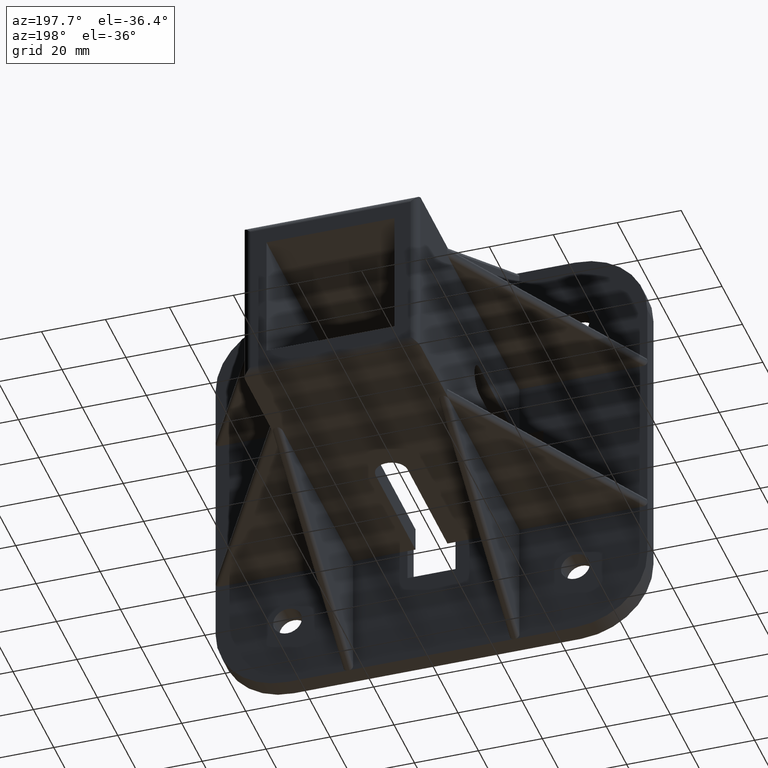
[diagram: clean part render]
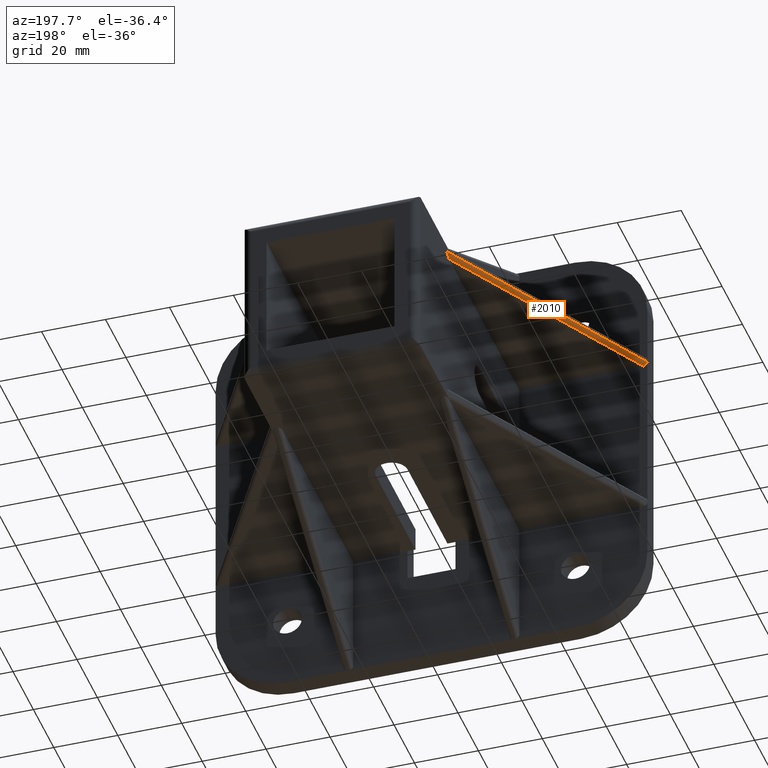
[diagram: same view with one face highlighted and labeled with its STEP entity id]
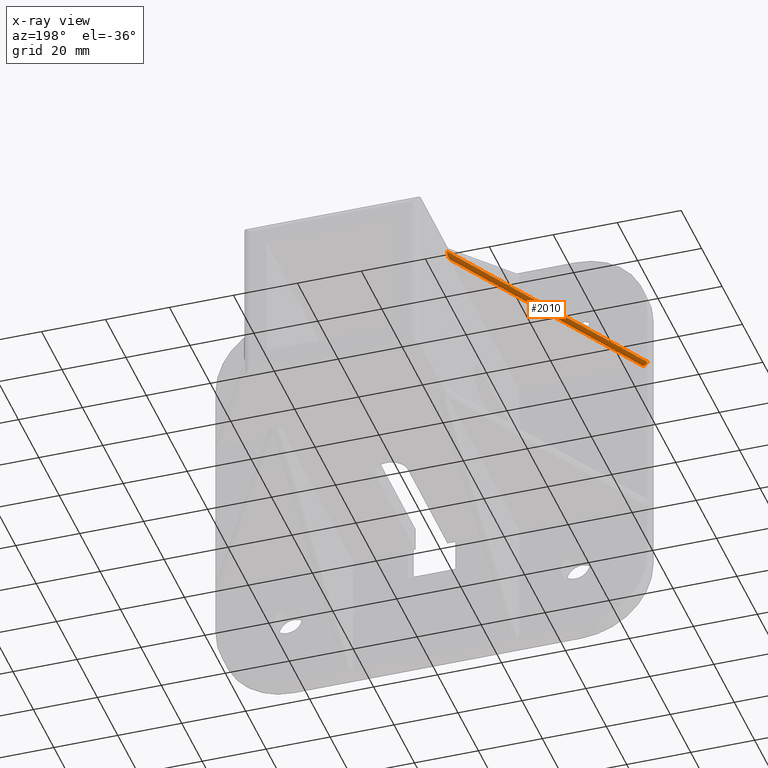
[diagram: x-ray of the same camera — body ghosted, the highlighted face saturated]
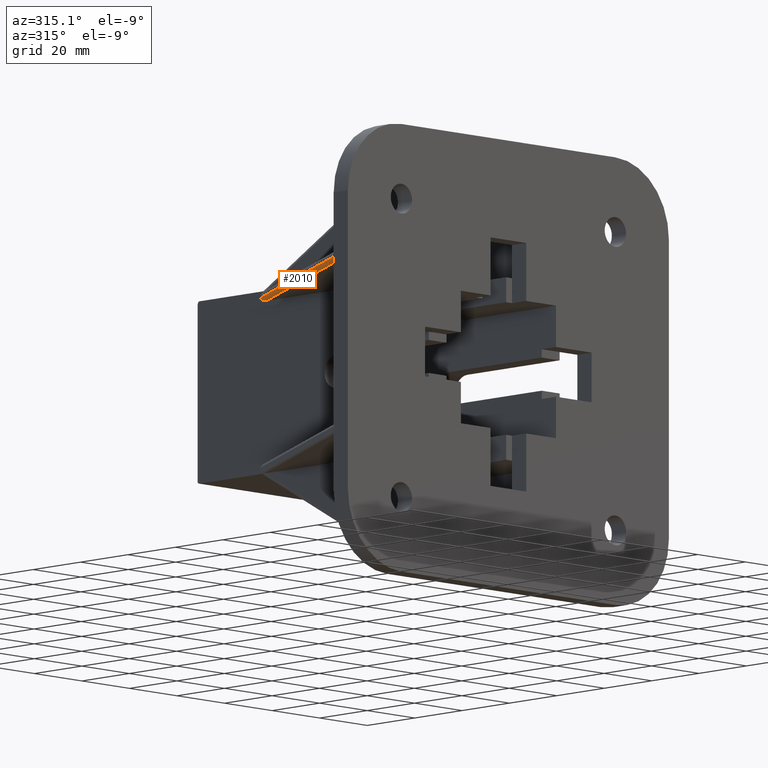
[diagram: same view with one face highlighted and labeled with its STEP entity id]
A machine part, auxiliary view. The second image highlights one B-rep face of the part: STEP entity #2010.
The next image is the same camera in x-ray: the body ghosted, the highlighted face saturated — about 0% of this face is hidden behind the body in this view.
A second angle (auxiliary view) of the same face is appended — the face is thin or edge-on in the first view.
In plain terms, the highlighted cylindrical surface (edge-blend (fillet) strip) has radius 1.2 mm, axis along (0.4908, 0.8712, 0).
Its self-contained STEP definition (entity closure, byte-faithful):
#19=ELLIPSE('',#2077,1.37733517060579,1.19999999999988);
#20=ELLIPSE('',#2080,2.44476992782592,1.20000000000023);
#238=LINE('',#3248,#470);
#239=LINE('',#3250,#471);
#470=VECTOR('',#2598,81.4923309275173);
#471=VECTOR('',#2601,78.6862745894891);
#668=FACE_OUTER_BOUND('',#788,.T.);
#788=EDGE_LOOP('',(#1732,#1733,#1734,#1735));
#907=VERTEX_POINT('',#2899);
#908=VERTEX_POINT('',#2901);
#913=VERTEX_POINT('',#2913);
#914=VERTEX_POINT('',#2915);
#1093=EDGE_CURVE('',#907,#908,#19,.T.);
#1100=EDGE_CURVE('',#913,#914,#20,.T.);
#1275=EDGE_CURVE('',#914,#907,#238,.T.);
#1276=EDGE_CURVE('',#908,#913,#239,.T.);
#1732=ORIENTED_EDGE('',*,*,#1100,.F.);
#1733=ORIENTED_EDGE('',*,*,#1276,.F.);
#1734=ORIENTED_EDGE('',*,*,#1093,.F.);
#1735=ORIENTED_EDGE('',*,*,#1275,.F.);
#1928=CYLINDRICAL_SURFACE('',#2174,1.2);
#2010=ADVANCED_FACE('',(#668),#1928,.T.);
#2077=AXIS2_PLACEMENT_3D('',#2902,#2305,#2306);
#2080=AXIS2_PLACEMENT_3D('',#2916,#2316,#2317);
#2174=AXIS2_PLACEMENT_3D('',#3299,#2668,#2669);
#2305=DIRECTION('center_axis',(-7.78406168813617E-15,-1.,-8.93438494436326E-15));
#2306=DIRECTION('ref_axis',(1.,-7.78406168813299E-15,-3.56058135366083E-13));
#2316=DIRECTION('center_axis',(1.,0.,0.));
#2317=DIRECTION('ref_axis',(0.,1.,-1.15207869395291E-13));
#2598=DIRECTION('',(-0.490843733940776,-0.871247627744877,0.));
#2601=DIRECTION('',(0.490843733940776,0.871247627744877,0.));
#2668=DIRECTION('center_axis',(0.490843733940776,0.871247627744877,0.));
#2669=DIRECTION('ref_axis',(-0.871247627744877,0.490843733940776,0.));
#2899=CARTESIAN_POINT('',(-67.5,6.,25.7));
#2901=CARTESIAN_POINT('',(-66.1226648293941,6.,24.5));
#2902=CARTESIAN_POINT('Origin',(-66.1226648293942,5.99999999999999,25.6999999999999));
#2913=CARTESIAN_POINT('',(-27.5,74.5552300721745,24.5));
#2915=CARTESIAN_POINT('',(-27.5,77.,25.7));
#2916=CARTESIAN_POINT('Origin',(-27.5,74.555230072174,25.7000000000002));
#3248=CARTESIAN_POINT('',(-67.5,6.00000000000002,25.7));
#3250=CARTESIAN_POINT('',(-26.4545028467062,76.410987519271,24.5));
#3299=CARTESIAN_POINT('Origin',(-26.4545028467061,76.4109875192711,25.7));